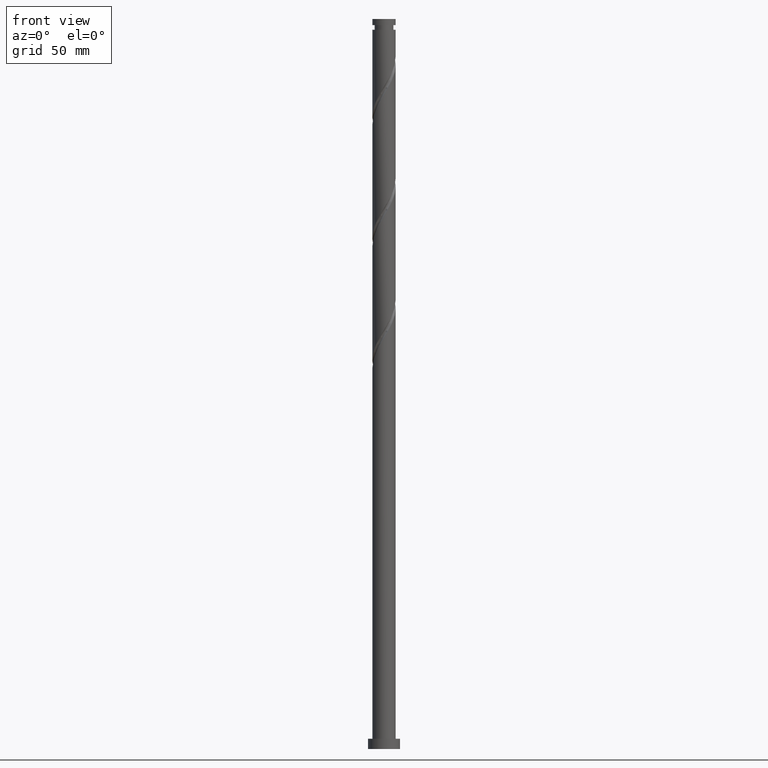
[diagram: clean part render]
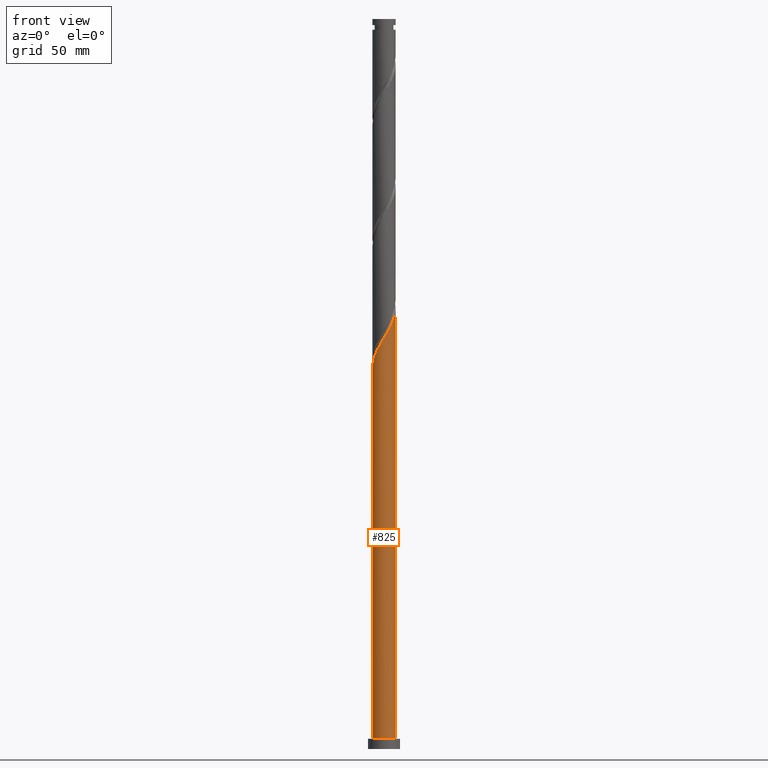
[diagram: same view with one face highlighted and labeled with its STEP entity id]
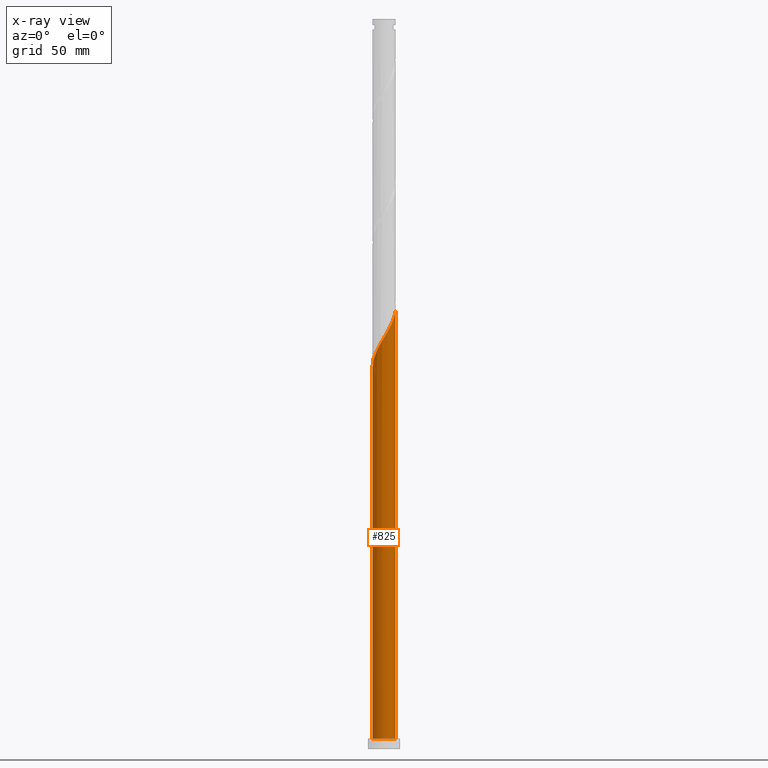
[diagram: x-ray of the same camera — body ghosted, the highlighted face saturated]
A machine part, front view. The second image highlights one B-rep face of the part: STEP entity #825.
The next image is the same camera in x-ray: the body ghosted, the highlighted face saturated — about 0% of this face is hidden behind the body in this view.
In plain terms, the highlighted cylindrical surface (edge-blend (fillet) strip) has radius 8 mm, axis along (-0, -0, -1).
Its self-contained STEP definition (entity closure, byte-faithful):
#11 = CARTESIAN_POINT ( 'NONE',  ( 7.403178404107809030, -3.031987717150570028, 297.2885908806702560 ) ) ;
#24 = CARTESIAN_POINT ( 'NONE',  ( -7.683203665594601439, -2.364152501690768293, 264.7365075473368279 ) ) ;
#28 = ORIENTED_EDGE ( 'NONE', *, *, #109, .T. ) ;
#109 = EDGE_CURVE ( 'NONE', #1816, #1384, #900, .T. ) ;
#126 = CARTESIAN_POINT ( 'NONE',  ( 0.000000000000000000, 0.000000000000000000, 500.0000000000000000 ) ) ;
#138 = CARTESIAN_POINT ( 'NONE',  ( 8.000000000000012434, -0.7718385194318621023, 301.1682471305905437 ) ) ;
#148 = CARTESIAN_POINT ( 'NONE',  ( 8.000000000000000000, 9.797174393178825657E-16, 500.0000000000000000 ) ) ;
#167 = CARTESIAN_POINT ( 'NONE',  ( -5.634265116796117745, -5.679353536596803309, 271.2469242140035135 ) ) ;
#180 = CARTESIAN_POINT ( 'NONE',  ( -8.000000000000010658, -0.01594122699408097310, 260.8039141238572256 ) ) ;
#265 = EDGE_CURVE ( 'NONE', #1816, #1023, #855, .T. ) ;
#298 = AXIS2_PLACEMENT_3D ( 'NONE', #504, #1626, #1278 ) ;
#312 = CARTESIAN_POINT ( 'NONE',  ( -7.074349788705244002, -3.817644651523124821, 267.3406742140035703 ) ) ;
#323 = CARTESIAN_POINT ( 'NONE',  ( 5.679353536596803309, -5.634265116796118633, 292.0802575473367710 ) ) ;
#335 = LINE ( 'NONE', #148, #1697 ) ;
#344 = VERTEX_POINT ( 'NONE', #2083 ) ;
#346 = CARTESIAN_POINT ( 'NONE',  ( -4.418017382144911132, -6.669416946860166284, 273.8510908806701423 ) ) ;
#365 = ORIENTED_EDGE ( 'NONE', *, *, #397, .T. ) ;
#397 = EDGE_CURVE ( 'NONE', #1384, #344, #606, .T. ) ;
#425 = EDGE_CURVE ( 'NONE', #1023, #344, #335, .T. ) ;
#473 = CARTESIAN_POINT ( 'NONE',  ( -7.999936469572752173, -0.03188232739405161970, 260.8302575473368279 ) ) ;
#504 = CARTESIAN_POINT ( 'NONE',  ( 0.000000000000000000, 0.000000000000000000, 7.000000000000000000 ) ) ;
#515 = CARTESIAN_POINT ( 'NONE',  ( 6.234280214836370071, -5.074897616815223778, 293.3823408806701991 ) ) ;
#600 = FACE_OUTER_BOUND ( 'NONE', #1658, .T. ) ;
#606 = CIRCLE ( 'NONE', #298, 8.000000000000000000 ) ;
#629 = CARTESIAN_POINT ( 'NONE',  ( -3.761137147474599818, -7.104553678883965162, 275.1531742140036272 ) ) ;
#643 = ORIENTED_EDGE ( 'NONE', *, *, #265, .F. ) ;
#650 = CARTESIAN_POINT ( 'NONE',  ( -7.840000000000009628, -1.591979899370598472, 263.4344242140035135 ) ) ;
#672 = CARTESIAN_POINT ( 'NONE',  ( -7.378776727149924497, -3.090898576606947223, 266.0385908806701991 ) ) ;
#788 = CARTESIAN_POINT ( 'NONE',  ( 8.000000000000012434, 1.106742219668252345E-14, 302.4442272360066681 ) ) ;
#801 = CARTESIAN_POINT ( 'NONE',  ( 7.104553678883962498, -3.761137147474604259, 295.9865075473367142 ) ) ;
#822 = CARTESIAN_POINT ( 'NONE',  ( 2.364152501690767849, -7.683203665594601439, 285.5698408806700286 ) ) ;
#825 = ADVANCED_FACE ( 'NONE', ( #600 ), #1751, .T. ) ;
#835 = CARTESIAN_POINT ( 'NONE',  ( 5.124426858357238324, -6.193632616777009936, 290.7781742140035135 ) ) ;
#838 = ORIENTED_EDGE ( 'NONE', *, *, #425, .F. ) ;
#855 =( BOUNDED_CURVE ( )  B_SPLINE_CURVE ( 2, ( #1486, #180, #473, #1311, #650, #24, #672, #312, #961, #1773, #167, #1150, #346, #629, #2094, #1647, #1939, #1117, #1139, #1807, #1323, #822, #1973, #1784, #989, #835, #323, #515, #1474, #801, #11, #1162, #1604, #138, #788 ),
 .UNSPECIFIED., .F., .T. ) 
 B_SPLINE_CURVE_WITH_KNOTS ( ( 3, 2, 2, 2, 2, 2, 2, 2, 2, 2, 2, 2, 2, 2, 2, 2, 2, 3 ),
 ( 0.05452869021808714328, 0.05468750000000000000, 0.06250000000000000000, 0.07031250000000000000, 0.07812500000000000000, 0.08593750000000000000, 0.09375000000000000000, 0.1015625000000000000, 0.1093750000000000000, 0.1171875000000000000, 0.1250000000000000000, 0.1328125000000000000, 0.1406250000000000000, 0.1484375000000000000, 0.1562500000000000000, 0.1640625000000000000, 0.1718750000000000000, 0.1795286902180871225 ),
 .UNSPECIFIED. ) 
 CURVE ( )  GEOMETRIC_REPRESENTATION_ITEM ( )  RATIONAL_B_SPLINE_CURVE ( ( 0.9089165573359421213, 0.9090019243628469914, 0.9090909090909388146, 0.9047133878838449217, 0.9090909090909388146, 0.9047133878838449217, 0.9090909090909388146, 0.9047133878838449217, 0.9090909090909388146, 0.9047133878838449217, 0.9090909090909388146, 0.9047133878838449217, 0.9090909090909388146, 0.9047133878838449217, 0.9090909090909388146, 0.9047133878838449217, 0.9090909090909388146, 0.9047133878838449217, 0.9090909090909388146, 0.9047133878838449217, 0.9090909090909388146, 0.9047133878838449217, 0.9090909090909388146, 0.9047133878838449217, 0.9090909090909388146, 0.9047133878838449217, 0.9090909090909388146, 0.9047133878838449217, 0.9090909090909388146, 0.9047133878838449217, 0.9090909090909388146, 0.9047133878838449217, 0.9090909090909388146, 0.9048023726119367449, 0.9089165573359422323 ) ) 
 REPRESENTATION_ITEM ( '' )  );
#900 = LINE ( 'NONE', #1554, #1181 ) ;
#961 = CARTESIAN_POINT ( 'NONE',  ( -6.633991202741127857, -4.471035754940181128, 268.6427575473368279 ) ) ;
#989 = CARTESIAN_POINT ( 'NONE',  ( 4.471035754940180240, -6.633991202741127857, 289.4760908806700854 ) ) ;
#1011 = AXIS2_PLACEMENT_3D ( 'NONE', #126, #1097, #2071 ) ;
#1023 = VERTEX_POINT ( 'NONE', #1646 ) ;
#1097 = DIRECTION ( 'NONE',  ( -0.000000000000000000, -0.000000000000000000, -1.000000000000000000 ) ) ;
#1117 = CARTESIAN_POINT ( 'NONE',  ( -0.7560426422623260923, -8.003076604740083866, 280.3615075473368279 ) ) ;
#1123 = CARTESIAN_POINT ( 'NONE',  ( -8.000000000000000000, 0.000000000000000000, 7.000000000000000000 ) ) ;
#1139 = CARTESIAN_POINT ( 'NONE',  ( 0.03188232739404948252, -7.999936469572753062, 281.6635908806701423 ) ) ;
#1150 = CARTESIAN_POINT ( 'NONE',  ( -5.074897616815223778, -6.234280214836370071, 272.5490075473368279 ) ) ;
#1162 = CARTESIAN_POINT ( 'NONE',  ( 7.701803129331653786, -2.302838286826541125, 298.5906742140034567 ) ) ;
#1181 = VECTOR ( 'NONE', #2064, 1000.000000000000000 ) ;
#1278 = DIRECTION ( 'NONE',  ( 1.000000000000000000, 0.000000000000000000, 0.000000000000000000 ) ) ;
#1311 = CARTESIAN_POINT ( 'NONE',  ( -7.996796334405415152, -0.8198072970504290957, 262.1323408806701991 ) ) ;
#1323 = CARTESIAN_POINT ( 'NONE',  ( 1.591979899370598250, -7.840000000000009628, 284.2677575473367710 ) ) ;
#1384 = VERTEX_POINT ( 'NONE', #1123 ) ;
#1452 = DIRECTION ( 'NONE',  ( -0.000000000000000000, -0.000000000000000000, -1.000000000000000000 ) ) ;
#1474 = CARTESIAN_POINT ( 'NONE',  ( 6.669416946860166284, -4.418017382144913796, 294.6844242140035135 ) ) ;
#1486 = CARTESIAN_POINT ( 'NONE',  ( -8.000000000000010658, 8.517702835776211347E-15, 260.7775605693399825 ) ) ;
#1554 = CARTESIAN_POINT ( 'NONE',  ( -8.000000000000000000, 0.000000000000000000, 500.0000000000000000 ) ) ;
#1604 = CARTESIAN_POINT ( 'NONE',  ( 7.852439867035869270, -1.529440464544437717, 299.8927575473367710 ) ) ;
#1626 = DIRECTION ( 'NONE',  ( 0.000000000000000000, 0.000000000000000000, 1.000000000000000000 ) ) ;
#1646 = CARTESIAN_POINT ( 'NONE',  ( 8.000000000000012434, 1.106742219668252345E-14, 302.4442272360066681 ) ) ;
#1647 = CARTESIAN_POINT ( 'NONE',  ( -2.302838286826541125, -7.701803129331653786, 277.7573408806701423 ) ) ;
#1658 = EDGE_LOOP ( 'NONE', ( #838, #643, #28, #365 ) ) ;
#1684 = CARTESIAN_POINT ( 'NONE',  ( -8.000000000000010658, 8.517702835776209769E-15, 260.7775605693399825 ) ) ;
#1697 = VECTOR ( 'NONE', #1452, 1000.000000000000000 ) ;
#1751 = CYLINDRICAL_SURFACE ( 'NONE', #1011, 8.000000000000000000 ) ;
#1773 = CARTESIAN_POINT ( 'NONE',  ( -6.193632616777009936, -5.124426858357240100, 269.9448408806701423 ) ) ;
#1784 = CARTESIAN_POINT ( 'NONE',  ( 3.817644651523124821, -7.074349788705244002, 288.1740075473367142 ) ) ;
#1807 = CARTESIAN_POINT ( 'NONE',  ( 0.8198072970504286516, -7.996796334405415152, 282.9656742140034567 ) ) ;
#1816 = VERTEX_POINT ( 'NONE', #1684 ) ;
#1939 = CARTESIAN_POINT ( 'NONE',  ( -1.529440464544434386, -7.852439867035869270, 279.0594242140035703 ) ) ;
#1973 = CARTESIAN_POINT ( 'NONE',  ( 3.090898576606948556, -7.378776727149924497, 286.8719242140035703 ) ) ;
#2064 = DIRECTION ( 'NONE',  ( -0.000000000000000000, -0.000000000000000000, -1.000000000000000000 ) ) ;
#2071 = DIRECTION ( 'NONE',  ( -1.000000000000000000, 0.000000000000000000, 0.000000000000000000 ) ) ;
#2083 = CARTESIAN_POINT ( 'NONE',  ( 8.000000000000000000, 9.797174393178825657E-16, 7.000000000000000000 ) ) ;
#2094 = CARTESIAN_POINT ( 'NONE',  ( -3.031987717150570028, -7.403178404107809918, 276.4552575473367710 ) ) ;